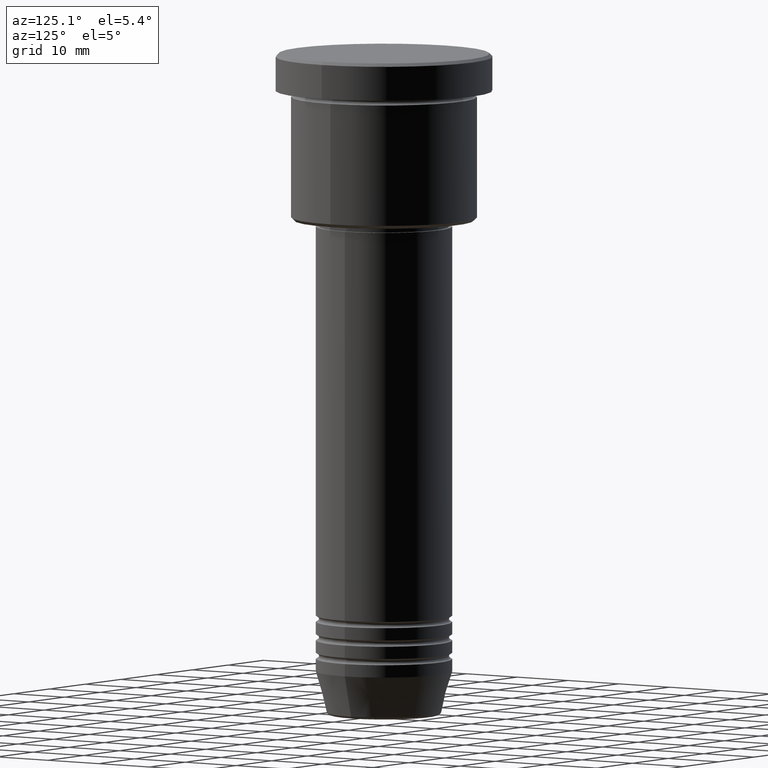
[diagram: clean part render]
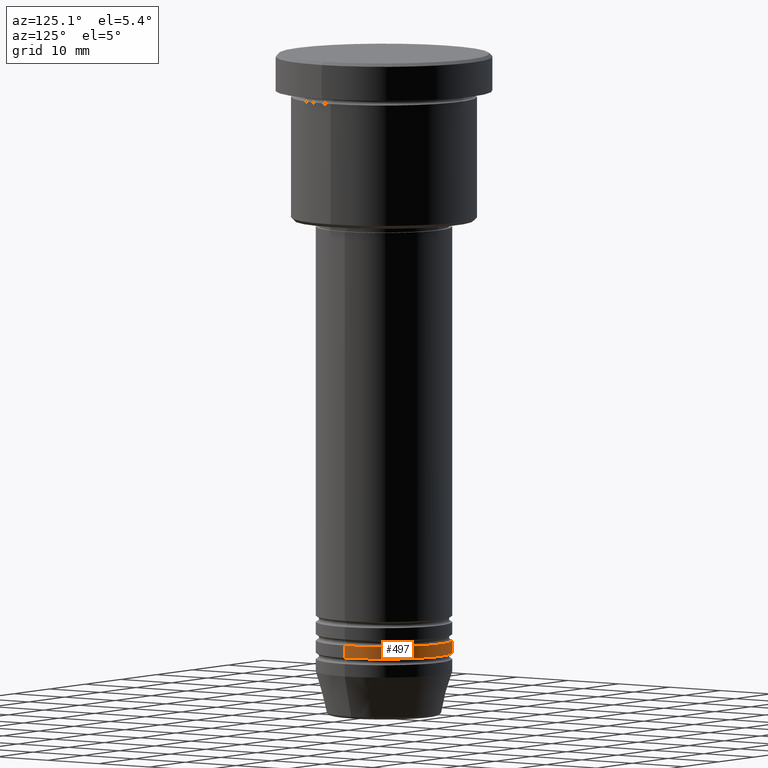
[diagram: same view with one face highlighted and labeled with its STEP entity id]
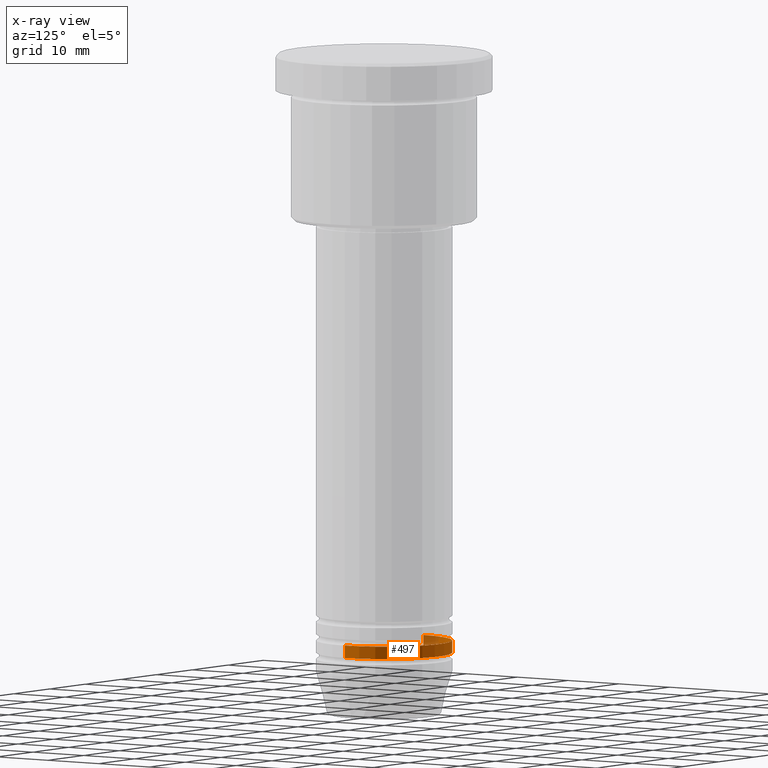
[diagram: x-ray of the same camera — body ghosted, the highlighted face saturated]
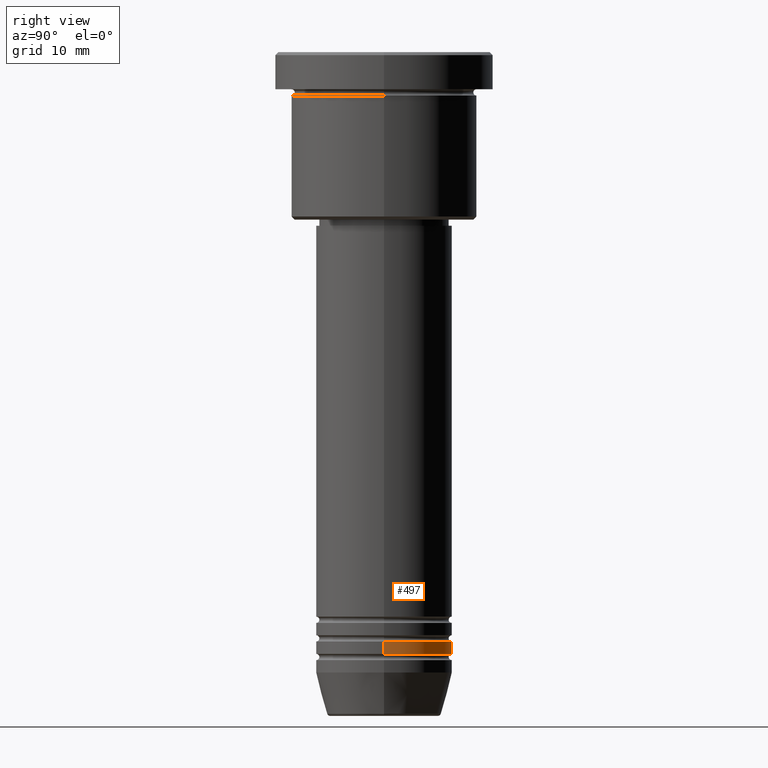
[diagram: same view with one face highlighted and labeled with its STEP entity id]
A machine part, auxiliary view. The second image highlights one B-rep face of the part: STEP entity #497.
The next image is the same camera in x-ray: the body ghosted, the highlighted face saturated — about 9% of this face is hidden behind the body in this view.
A second angle (right view) of the same face is appended — the face is thin or edge-on in the first view.
In plain terms, the highlighted cylindrical surface (partial cylindrical patch) has radius 11 mm, axis along (-0, -0, 1).
Its self-contained STEP definition (entity closure, byte-faithful):
#3 = EDGE_CURVE ( 'NONE', #626, #87, #1091, .T. ) ;
#11 = VECTOR ( 'NONE', #441, 1000.000000000000000 ) ;
#17 = EDGE_LOOP ( 'NONE', ( #225, #44, #705, #198 ) ) ;
#44 = ORIENTED_EDGE ( 'NONE', *, *, #3, .T. ) ;
#69 = DIRECTION ( 'NONE',  ( 1.000000000000000000, 0.000000000000000000, 0.000000000000000000 ) ) ;
#74 = CARTESIAN_POINT ( 'NONE',  ( 11.00000000000000000, 0.000000000000000000, 0.000000000000000000 ) ) ;
#81 = EDGE_CURVE ( 'NONE', #485, #626, #690, .T. ) ;
#86 = DIRECTION ( 'NONE',  ( -0.000000000000000000, -0.000000000000000000, 1.000000000000000000 ) ) ;
#87 = VERTEX_POINT ( 'NONE', #183 ) ;
#107 = CARTESIAN_POINT ( 'NONE',  ( 0.000000000000000000, 0.000000000000000000, -96.99999999999997158 ) ) ;
#183 = CARTESIAN_POINT ( 'NONE',  ( -11.00000000000000000, 1.347111479062088405E-15, -94.99999999999998579 ) ) ;
#185 = LINE ( 'NONE', #74, #11 ) ;
#198 = ORIENTED_EDGE ( 'NONE', *, *, #375, .F. ) ;
#201 = EDGE_CURVE ( 'NONE', #230, #87, #376, .T. ) ;
#225 = ORIENTED_EDGE ( 'NONE', *, *, #81, .T. ) ;
#230 = VERTEX_POINT ( 'NONE', #1054 ) ;
#278 = CARTESIAN_POINT ( 'NONE',  ( -11.00000000000000000, 1.347111479062088405E-15, 0.000000000000000000 ) ) ;
#313 = DIRECTION ( 'NONE',  ( -0.000000000000000000, -0.000000000000000000, 1.000000000000000000 ) ) ;
#375 = EDGE_CURVE ( 'NONE', #485, #230, #185, .T. ) ;
#376 = CIRCLE ( 'NONE', #1045, 11.00000000000000000 ) ;
#441 = DIRECTION ( 'NONE',  ( -0.000000000000000000, -0.000000000000000000, 1.000000000000000000 ) ) ;
#454 = VECTOR ( 'NONE', #86, 1000.000000000000000 ) ;
#485 = VERTEX_POINT ( 'NONE', #766 ) ;
#497 = ADVANCED_FACE ( 'NONE', ( #605 ), #1046, .T. ) ;
#530 = DIRECTION ( 'NONE',  ( -0.000000000000000000, -0.000000000000000000, 1.000000000000000000 ) ) ;
#605 = FACE_OUTER_BOUND ( 'NONE', #17, .T. ) ;
#626 = VERTEX_POINT ( 'NONE', #804 ) ;
#653 = DIRECTION ( 'NONE',  ( 1.000000000000000000, 0.000000000000000000, 0.000000000000000000 ) ) ;
#690 = CIRCLE ( 'NONE', #709, 11.00000000000000000 ) ;
#705 = ORIENTED_EDGE ( 'NONE', *, *, #201, .F. ) ;
#709 = AXIS2_PLACEMENT_3D ( 'NONE', #107, #996, #653 ) ;
#766 = CARTESIAN_POINT ( 'NONE',  ( 11.00000000000000000, 0.000000000000000000, -96.99999999999997158 ) ) ;
#804 = CARTESIAN_POINT ( 'NONE',  ( -11.00000000000000000, 1.347111479062088405E-15, -96.99999999999997158 ) ) ;
#882 = DIRECTION ( 'NONE',  ( 1.000000000000000000, 0.000000000000000000, 0.000000000000000000 ) ) ;
#975 = CARTESIAN_POINT ( 'NONE',  ( 0.000000000000000000, 0.000000000000000000, -94.99999999999998579 ) ) ;
#996 = DIRECTION ( 'NONE',  ( -0.000000000000000000, -0.000000000000000000, 1.000000000000000000 ) ) ;
#1045 = AXIS2_PLACEMENT_3D ( 'NONE', #975, #530, #69 ) ;
#1046 = CYLINDRICAL_SURFACE ( 'NONE', #1047, 11.00000000000000000 ) ;
#1047 = AXIS2_PLACEMENT_3D ( 'NONE', #1132, #313, #882 ) ;
#1054 = CARTESIAN_POINT ( 'NONE',  ( 11.00000000000000000, 0.000000000000000000, -94.99999999999998579 ) ) ;
#1091 = LINE ( 'NONE', #278, #454 ) ;
#1132 = CARTESIAN_POINT ( 'NONE',  ( 0.000000000000000000, 0.000000000000000000, 0.000000000000000000 ) ) ;